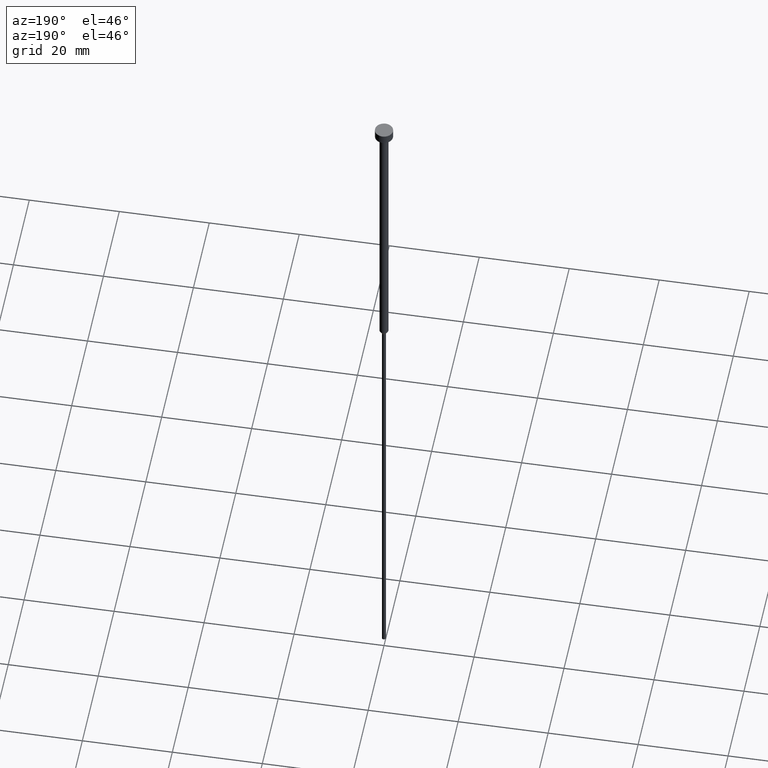
[diagram: clean part render]
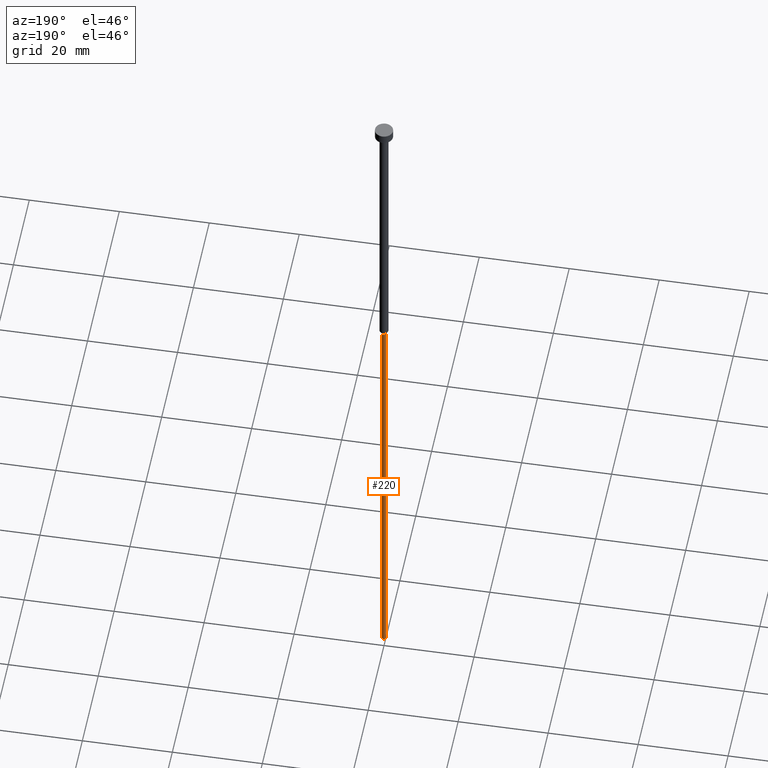
[diagram: same view with one face highlighted and labeled with its STEP entity id]
A machine part, auxiliary view. The second image highlights one B-rep face of the part: STEP entity #220.
In plain terms, the highlighted cylindrical surface (edge-blend (fillet) strip) has radius 0.45 mm, axis along (-0, -0, 1).
Its self-contained STEP definition (entity closure, byte-faithful):
#10 = AXIS2_PLACEMENT_3D ( 'NONE', #222, #309, #300 ) ;
#19 = VERTEX_POINT ( 'NONE', #296 ) ;
#21 = ORIENTED_EDGE ( 'NONE', *, *, #263, .F. ) ;
#27 = CARTESIAN_POINT ( 'NONE',  ( 0.000000000000000000, 0.000000000000000000, -160.0000000000000000 ) ) ;
#31 = LINE ( 'NONE', #63, #113 ) ;
#40 = EDGE_CURVE ( 'NONE', #177, #49, #57, .T. ) ;
#49 = VERTEX_POINT ( 'NONE', #241 ) ;
#57 = CIRCLE ( 'NONE', #108, 0.4500000000000000111 ) ;
#63 = CARTESIAN_POINT ( 'NONE',  ( 0.4500000000000000111, 0.000000000000000000, 0.000000000000000000 ) ) ;
#85 = CARTESIAN_POINT ( 'NONE',  ( 0.4500000000000000111, 0.000000000000000000, -63.95262794416288443 ) ) ;
#108 = AXIS2_PLACEMENT_3D ( 'NONE', #27, #240, #217 ) ;
#113 = VECTOR ( 'NONE', #331, 1000.000000000000000 ) ;
#114 = CARTESIAN_POINT ( 'NONE',  ( 0.000000000000000000, 0.000000000000000000, -63.95262794416288443 ) ) ;
#118 = FACE_OUTER_BOUND ( 'NONE', #153, .T. ) ;
#130 = VERTEX_POINT ( 'NONE', #85 ) ;
#146 = DIRECTION ( 'NONE',  ( -0.000000000000000000, -0.000000000000000000, 1.000000000000000000 ) ) ;
#153 = EDGE_LOOP ( 'NONE', ( #207, #290, #256, #21 ) ) ;
#170 = CYLINDRICAL_SURFACE ( 'NONE', #10, 0.4500000000000000111 ) ;
#172 = LINE ( 'NONE', #334, #236 ) ;
#177 = VERTEX_POINT ( 'NONE', #190 ) ;
#187 = AXIS2_PLACEMENT_3D ( 'NONE', #114, #304, #226 ) ;
#190 = CARTESIAN_POINT ( 'NONE',  ( 0.4500000000000000111, 0.000000000000000000, -160.0000000000000000 ) ) ;
#207 = ORIENTED_EDGE ( 'NONE', *, *, #40, .T. ) ;
#217 = DIRECTION ( 'NONE',  ( 1.000000000000000000, 0.000000000000000000, 0.000000000000000000 ) ) ;
#220 = ADVANCED_FACE ( 'NONE', ( #118 ), #170, .T. ) ;
#222 = CARTESIAN_POINT ( 'NONE',  ( 0.000000000000000000, 0.000000000000000000, 0.000000000000000000 ) ) ;
#226 = DIRECTION ( 'NONE',  ( 1.000000000000000000, 0.000000000000000000, 0.000000000000000000 ) ) ;
#236 = VECTOR ( 'NONE', #146, 1000.000000000000000 ) ;
#240 = DIRECTION ( 'NONE',  ( -0.000000000000000000, -0.000000000000000000, 1.000000000000000000 ) ) ;
#241 = CARTESIAN_POINT ( 'NONE',  ( -0.4500000000000000111, 5.510910596163088939E-17, -160.0000000000000000 ) ) ;
#256 = ORIENTED_EDGE ( 'NONE', *, *, #298, .F. ) ;
#263 = EDGE_CURVE ( 'NONE', #177, #130, #31, .T. ) ;
#276 = CIRCLE ( 'NONE', #187, 0.4500000000000000111 ) ;
#290 = ORIENTED_EDGE ( 'NONE', *, *, #326, .T. ) ;
#296 = CARTESIAN_POINT ( 'NONE',  ( -0.4500000000000000111, 5.510910596163088939E-17, -63.95262794416288443 ) ) ;
#298 = EDGE_CURVE ( 'NONE', #130, #19, #276, .T. ) ;
#300 = DIRECTION ( 'NONE',  ( 1.000000000000000000, 0.000000000000000000, 0.000000000000000000 ) ) ;
#304 = DIRECTION ( 'NONE',  ( -0.000000000000000000, -0.000000000000000000, 1.000000000000000000 ) ) ;
#309 = DIRECTION ( 'NONE',  ( -0.000000000000000000, -0.000000000000000000, 1.000000000000000000 ) ) ;
#326 = EDGE_CURVE ( 'NONE', #49, #19, #172, .T. ) ;
#331 = DIRECTION ( 'NONE',  ( -0.000000000000000000, -0.000000000000000000, 1.000000000000000000 ) ) ;
#334 = CARTESIAN_POINT ( 'NONE',  ( -0.4500000000000000111, 5.510910596163088939E-17, 0.000000000000000000 ) ) ;